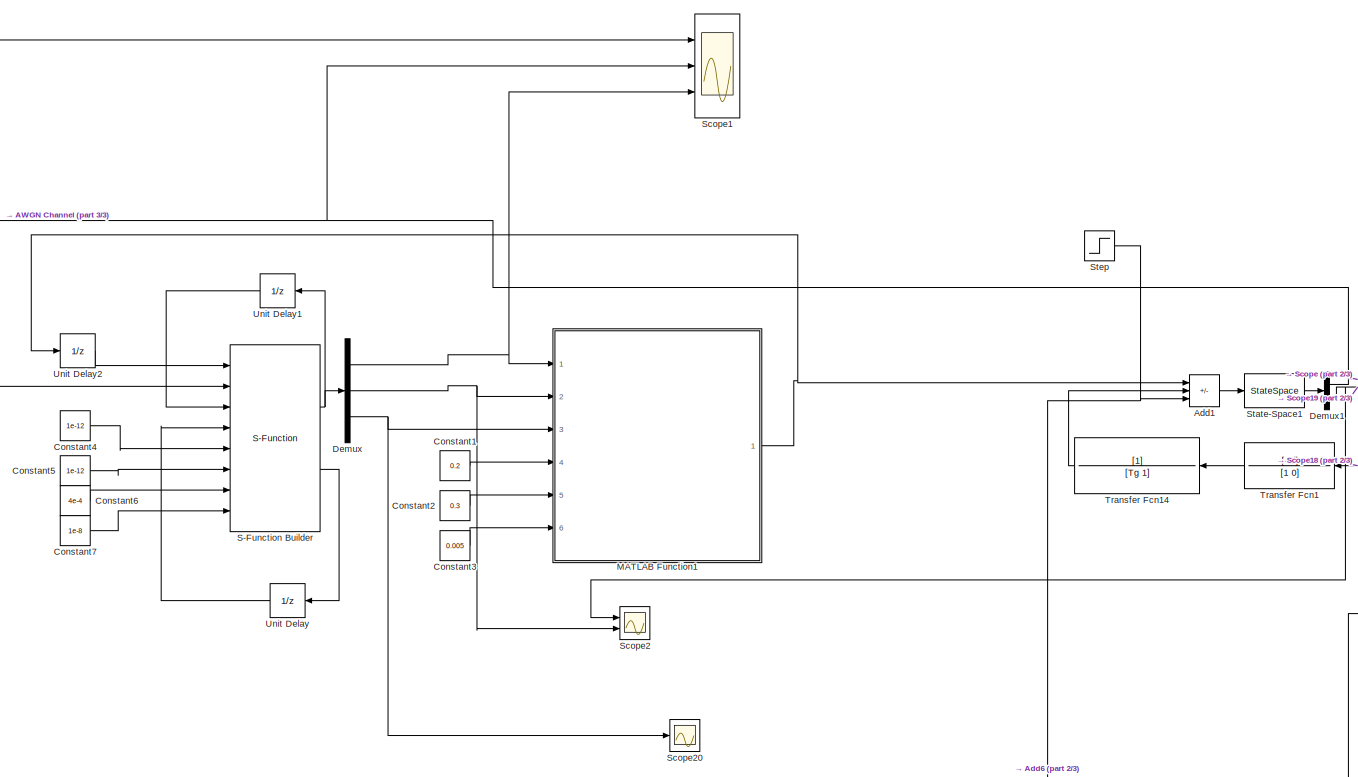
[diagram: root canvas - part 1/3, center side, full height]
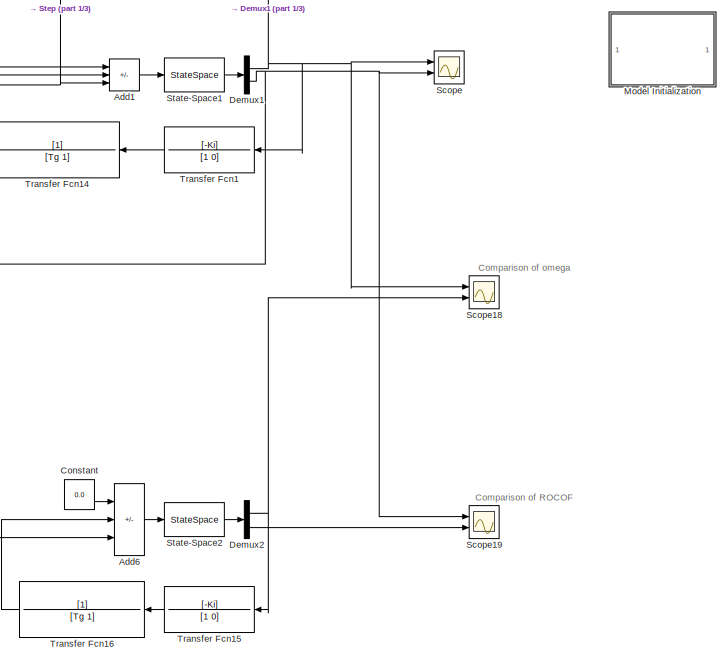
[diagram: root canvas - part 2/3, middle right region]
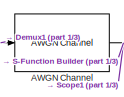
[diagram: root canvas - part 3/3, middle left region]
MODEL slx_324334edecd2
KIND model
CONFIG AbsTol = auto
CONFIG EnableMultiTasking = off
CONFIG FixedStep = 0.02
CONFIG InitFcn = M = 4; D = 1.5/100; Rp = 0.05; Tg = 0.2; Ki = 1.8;
CONFIG MaxStep = 1e-3
CONFIG MinStep = auto
CONFIG RelTol = 1e-3
CONFIG SampleTimeConstraint = Unconstrained
CONFIG Solver = VariableStepAuto
CONFIG SolverName = VariableStepAuto
CONFIG StartTime = 0.0
CONFIG StopTime = 50
BLOCK [Reference] AWGN Channel  REF=commchan3/AWGN
Channel
  Ports = [1, 1]
  SourceBlock = commchan3/AWGN\nChannel
  SourceProductBaseCode = CM
  SourceType = AWGN Channel
  UserDataPersistent = on
BLOCK [Sum] Add1
  IconShape = rectangular
  Inputs = ++-
  Ports = [3, 1]
BLOCK [Sum] Add6
  IconShape = rectangular
  Inputs = ++-
  Ports = [3, 1]
BLOCK [Constant] Constant
  Value = 0.0
BLOCK [Constant] Constant1
  Value = 0.2
BLOCK [Constant] Constant2
  Value = 0.3
BLOCK [Constant] Constant3
  Value = 0.005
BLOCK [Constant] Constant4
  Value = 1e-12
BLOCK [Constant] Constant5
  Value = 1e-12
BLOCK [Constant] Constant6
  Value = 4e-4
BLOCK [Constant] Constant7
  Value = 1e-8
BLOCK [Demux] Demux
  Outputs = 3
  Ports = [1, 3]
BLOCK [Demux] Demux1
  Outputs = 2
  Ports = [1, 2]
BLOCK [Demux] Demux2
  Outputs = 2
  Ports = [1, 2]
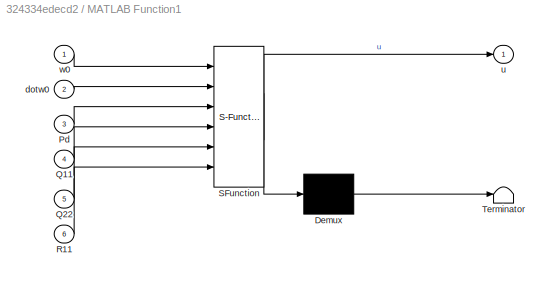
BLOCK [SubSystem] MATLAB Function1
  ErrorFcn = Stateflow.Translate.translate
  MinAlgLoopOccurrences = on
  PermitHierarchicalResolution = ExplicitOnly
  Ports = [6, 1]
  RequestExecContextInheritance = off
  SFBlockType = MATLAB Function
  SystemSampleTime = 0.02
  TreatAsAtomicUnit = on
BLOCK [Demux] MATLAB Function1/ Demux 
  Outputs = 1
  Ports = [1, 1]
BLOCK [S-Function] MATLAB Function1/ SFunction 
  EnableBusSupport = on
  FunctionName = sf_sfun
  PortCounts = [6 2]
  Ports = [6, 2]
  SFcnIsStateOwnerBlock = off
  SFunctionDeploymentMode = off
  Tag = Stateflow S-Function 1
BLOCK [Terminator] MATLAB Function1/ Terminator 
BLOCK [Inport] MATLAB Function1/Pd
  Port = 3
BLOCK [Inport] MATLAB Function1/Q11
  Port = 4
BLOCK [Inport] MATLAB Function1/Q22
  Port = 5
BLOCK [Inport] MATLAB Function1/R11
  Port = 6
BLOCK [Inport] MATLAB Function1/dotw0
  Port = 2
BLOCK [Outport] MATLAB Function1/u
BLOCK [Inport] MATLAB Function1/w0
BLOCK [SubSystem] Model Initialization
  CopyFcn = set_param(gcb,'LinkStatus','inactive')
  Ports = []
  RequestExecContextInheritance = off
BLOCK [S-Function] S-Function Builder
  CopyFcn = set_param(gcbh,'LinkStatus','none')
  EnableBusSupport = off
  FunctionName = KF_Sfun
  InitFcn = try, set_param(gcb,'FunctionName','KF_Sfun'), end
  OpenFcn = sfunctionwizard(gcbh)
  Ports = [8, 2]
  PreSaveFcn = try, set_param(gcb,'FunctionName','KF_Sfun'), end
  SFcnIsStateOwnerBlock = off
  SFunctionDeploymentMode = off
  SFunctionModules = KF_Sfun_wrapper EKF_Func EKF_Func_Call
BLOCK [Scope] Scope
  Floating = off
  NumInputPorts = 2
  Ports = [2]
  ScopeSpecificationString = Simulink.scopes.TimeScopeBlockCfg('CurrentConfiguration', extmgr.ConfigurationSet(extmgr.Configuration('Core','General UI',true),extmgr.Configuration('Core','Source UI',true),extmgr.Configuration('Sources','WiredSimulink',true,'DataLoggingVariableName','ScopeData2'),extmgr.Configuration('Visuals','Time Domain',true,'SerializedDisplays',{struct('MinYLimReal','-0.08054','MaxYLimReal','0.01248','YLab...<+1633ch>
BLOCK [Scope] Scope1
  Floating = off
  NumInputPorts = 3
  Ports = [3]
  ScopeSpecificationString = Simulink.scopes.TimeScopeBlockCfg('CurrentConfiguration', extmgr.ConfigurationSet(extmgr.Configuration('Core','General UI',true),extmgr.Configuration('Core','Source UI',true),extmgr.Configuration('Sources','WiredSimulink',true,'DataLoggingVariableName','ScopeData1'),extmgr.Configuration('Visuals','Time Domain',true,'SerializedDisplays',{struct('MinYLimReal','-0.03721','MaxYLimReal','0.00463','YLab...<+1438ch>
BLOCK [Scope] Scope18
  Floating = off
  NumInputPorts = 2
  Ports = [2]
  ScopeSpecificationString = Simulink.scopes.TimeScopeBlockCfg('CurrentConfiguration', extmgr.ConfigurationSet(extmgr.Configuration('Core','General UI',true),extmgr.Configuration('Core','Source UI',true),extmgr.Configuration('Sources','WiredSimulink',true,'DataLoggingVariableName','ScopeData12'),extmgr.Configuration('Visuals','Time Domain',true,'SerializedDisplays',{struct('MinYLimReal','-0.04864','MaxYLimReal','0.00546','YLa...<+1689ch>
BLOCK [Scope] Scope19
  Floating = off
  NumInputPorts = 2
  Ports = [2]
  ScopeSpecificationString = Simulink.scopes.TimeScopeBlockCfg('CurrentConfiguration', extmgr.ConfigurationSet(extmgr.Configuration('Core','General UI',true),extmgr.Configuration('Core','Source UI',true),extmgr.Configuration('Sources','WiredSimulink',true,'DataLoggingVariableName','ScopeData13'),extmgr.Configuration('Visuals','Time Domain',true,'SerializedDisplays',{struct('MinYLimReal','-0.11763','MaxYLimReal','0.03534','YLa...<+1686ch>
BLOCK [Scope] Scope2
  Floating = off
  NumInputPorts = 2
  Ports = [2]
  ScopeSpecificationString = Simulink.scopes.TimeScopeBlockCfg('CurrentConfiguration', extmgr.ConfigurationSet(extmgr.Configuration('Core','General UI',true),extmgr.Configuration('Core','Source UI',true),extmgr.Configuration('Sources','WiredSimulink',true,'DataLoggingVariableName','ScopeData2'),extmgr.Configuration('Visuals','Time Domain',true,'SerializedDisplays',{struct('MinYLimReal','-0.07852','MaxYLimReal','0.00997','YLab...<+1396ch>
BLOCK [Scope] Scope20
  Floating = off
  NumInputPorts = 1
  Ports = [1]
  ScopeSpecificationString = Simulink.scopes.TimeScopeBlockCfg('CurrentConfiguration', extmgr.ConfigurationSet(extmgr.Configuration('Core','General UI',true),extmgr.Configuration('Core','Source UI',true),extmgr.Configuration('Sources','WiredSimulink',true,'DataLoggingVariableName','ScopeData14'),extmgr.Configuration('Visuals','Time Domain',true,'SerializedDisplays',{struct('MinYLimReal','-0.69541','MaxYLimReal','1.02841','YLa...<+1367ch>
BLOCK [StateSpace] State-Space1
  A = [0 1;-(D/(M*Tg)+1/(Rp*M*Tg)) -(D/M + 1/Tg)]
  B = [0;1/(M*Tg)]
  C = eye(2)
  D = zeros(2,1)
  InitialCondition = 0
  Ports = [1, 1]
BLOCK [StateSpace] State-Space2
  A = [0 1;-(D/(M*Tg)+1/(Rp*M*Tg)) -(D/M + 1/Tg)]
  B = [0;1/(M*Tg)]
  C = eye(2)
  D = zeros(2,1)
  InitialCondition = 0
  Ports = [1, 1]
BLOCK [Step] Step
  After = 0.75
  SampleTime = 0
  Time = 10
BLOCK [TransferFcn] Transfer Fcn1
  Denominator = [1 0]
  NameLocation = top
  Numerator = [-Ki]
BLOCK [TransferFcn] Transfer Fcn14
  Denominator = [Tg 1]
  NameLocation = top
BLOCK [TransferFcn] Transfer Fcn15
  Denominator = [1 0]
  NameLocation = top
  Numerator = [-Ki]
BLOCK [TransferFcn] Transfer Fcn16
  Denominator = [Tg 1]
  NameLocation = top
BLOCK [UnitDelay] Unit Delay
  HasFrameUpgradeWarning = on
  InitialCondition = 1*diag([1, 1, 1])
  SampleTime = 0.02
BLOCK [UnitDelay] Unit Delay1
  HasFrameUpgradeWarning = on
  SampleTime = 0.02
BLOCK [UnitDelay] Unit Delay2
  HasFrameUpgradeWarning = on
  SampleTime = 0.02
ANNOTATION (root): Comparison of ROCOF
ANNOTATION (root): Comparison of omega
NET AWGN Channel:1 -> S-Function Builder:2, Scope1:1
LINE Add1:1 -> State-Space1:1
LINE Add6:1 -> State-Space2:1
LINE Constant1:1 -> MATLAB Function1:4
LINE Constant2:1 -> MATLAB Function1:5
LINE Constant3:1 -> MATLAB Function1:6
LINE Constant4:1 -> S-Function Builder:5
LINE Constant5:1 -> S-Function Builder:6
LINE Constant6:1 -> S-Function Builder:7
LINE Constant7:1 -> S-Function Builder:8
LINE Constant:1 -> Add6:1
NET Demux1:1 -> AWGN Channel:1, Scope18:1, Scope1:2, Scope:1, Transfer Fcn1:1
NET Demux1:2 -> Scope19:1, Scope2:1, Scope:2
NET Demux2:1 -> Scope18:2, Transfer Fcn15:1
LINE Demux2:2 -> Scope19:2
NET Demux:1 -> MATLAB Function1:1, Scope1:3
NET Demux:2 -> MATLAB Function1:2, Scope2:2
NET Demux:3 -> MATLAB Function1:3, Scope20:1
NET MATLAB Function1:1 -> Add1:1, Unit Delay2:1
NET S-Function Builder:1 -> Demux:1, Unit Delay1:1
LINE S-Function Builder:2 -> Unit Delay:1
LINE State-Space1:1 -> Demux1:1
LINE State-Space2:1 -> Demux2:1
NET Step:1 -> Add1:3, Add6:3
LINE Transfer Fcn14:1 -> Add1:2
LINE Transfer Fcn15:1 -> Transfer Fcn16:1
LINE Transfer Fcn16:1 -> Add6:2
LINE Transfer Fcn1:1 -> Transfer Fcn14:1
LINE Unit Delay1:1 -> S-Function Builder:3
LINE Unit Delay2:1 -> S-Function Builder:1
LINE Unit Delay:1 -> S-Function Builder:4
note: NET lines group one-source signal fan-out (src -> all destinations, sorted); 1:1 wires keep LINE
CHART MATLAB Function1 states=1 transitions=1
  STATE_LABEL 'eML_blk_kernel()'
  STATE_LABEL "SCRIPT:\nfunction u = MPC_Func(w0, dotw0, Pd, Q11, Q22, R11)\n% N = 50;\n% Ts = 0.02;\ncoder.extrinsic('Mc');\nu = 0.0;\nu = Mc('M', w0, dotw0, Pd, Q11, Q22, R11);"
CHART  states=0 transitions=0
